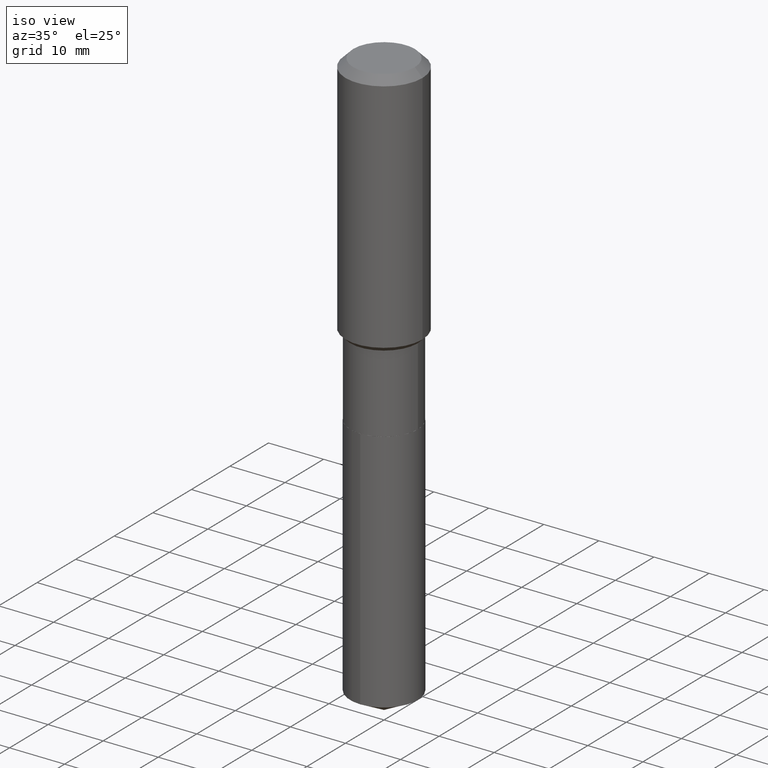
[diagram: clean part render]
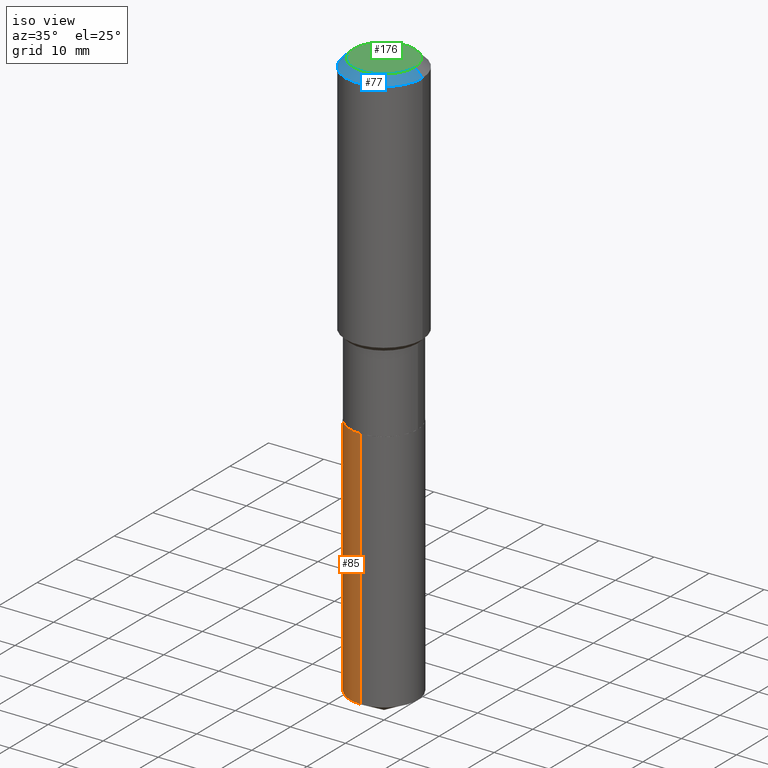
[diagram: same view with three faces highlighted in distinct colors, each labeled with its STEP entity id]
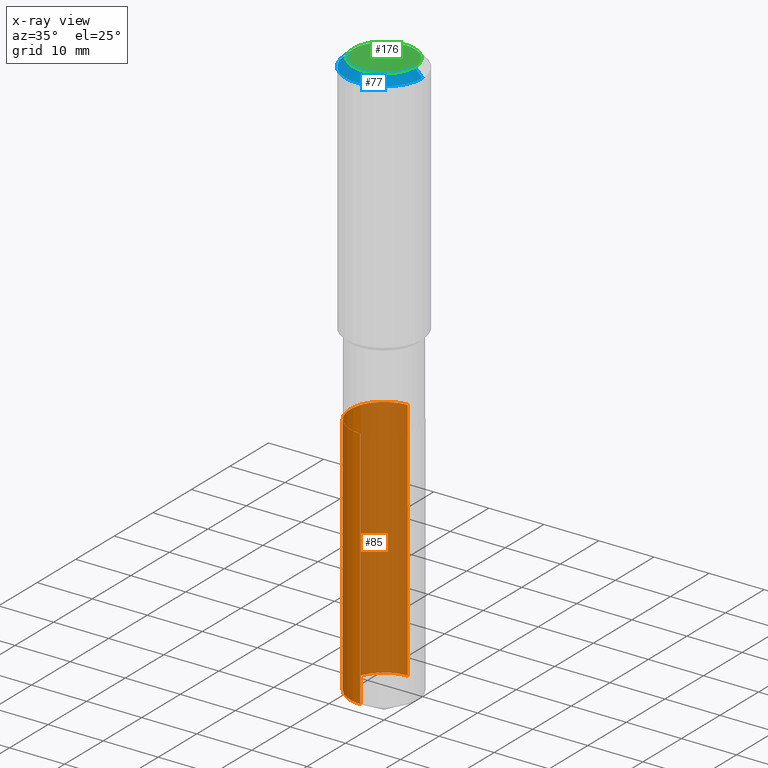
[diagram: x-ray of the same camera — body ghosted, the three highlighted faces saturated]
A machine part, iso view with three faces highlighted in distinct colors.
The next image is the same camera in x-ray (body ghosted, the three faces saturated) — at least one of them is partly hidden behind the body in this view.
Their STEP definitions:

[orange] entity #85 — the highlighted cylindrical surface (partial cylindrical patch) has radius 6.1519 mm, axis along (-0, 0, 1).
#1 = CARTESIAN_POINT ( 'NONE',  ( -1.691273560535556602E-15, -0.2422000000000081865, -2.334799999999999542 ) ) ;
#2 = EDGE_CURVE ( 'NONE', #485, #347, #308, .T. ) ;
#20 = CARTESIAN_POINT ( 'NONE',  ( 5.709680568681056788E-29, -8.151910629930976498E-15, -2.334799999999999986 ) ) ;
#31 = DIRECTION ( 'NONE',  ( -2.445495124633309796E-29, 3.491443649327408440E-15, 1.000000000000000000 ) ) ;
#66 = ORIENTED_EDGE ( 'NONE', *, *, #321, .T. ) ;
#75 = CARTESIAN_POINT ( 'NONE',  ( 9.986900392023290788E-29, -1.425851531646649919E-14, -4.083819975651589829 ) ) ;
#85 = ADVANCED_FACE ( 'NONE', ( #149 ), #103, .T. ) ;
#96 = EDGE_LOOP ( 'NONE', ( #246, #253, #66, #320 ) ) ;
#99 = DIRECTION ( 'NONE',  ( -6.982962677686265922E-15, -1.000000000000000000, 3.383791899666717075E-15 ) ) ;
#103 = CYLINDRICAL_SURFACE ( 'NONE', #340, 0.2422000000000000264 ) ;
#115 = CARTESIAN_POINT ( 'NONE',  ( 1.720934506011062431E-15, 0.2421999999999857323, -4.083819975651591605 ) ) ;
#123 = EDGE_CURVE ( 'NONE', #137, #439, #413, .T. ) ;
#137 = VERTEX_POINT ( 'NONE', #115 ) ;
#149 = FACE_OUTER_BOUND ( 'NONE', #96, .T. ) ;
#154 = CARTESIAN_POINT ( 'NONE',  ( 1.720934506011019438E-15, 0.2421999999999918662, -2.334800000000000875 ) ) ;
#188 = DIRECTION ( 'NONE',  ( -2.445495124633309796E-29, 3.491443649327408440E-15, 1.000000000000000000 ) ) ;
#246 = ORIENTED_EDGE ( 'NONE', *, *, #488, .F. ) ;
#253 = ORIENTED_EDGE ( 'NONE', *, *, #123, .T. ) ;
#261 = DIRECTION ( 'NONE',  ( -6.982962677686265922E-15, -1.000000000000000000, 4.511722532888956363E-15 ) ) ;
#301 = CARTESIAN_POINT ( 'NONE',  ( 1.720934506011062629E-15, 0.2421999999999918940, -2.334800000000000875 ) ) ;
#308 = CIRCLE ( 'NONE', #362, 0.2422000000000000264 ) ;
#320 = ORIENTED_EDGE ( 'NONE', *, *, #2, .F. ) ;
#321 = EDGE_CURVE ( 'NONE', #439, #347, #333, .T. ) ;
#333 = LINE ( 'NONE', #1, #473 ) ;
#336 = CARTESIAN_POINT ( 'NONE',  ( 5.709680568681056788E-29, -8.151910629930976498E-15, -2.334799999999999986 ) ) ;
#340 = AXIS2_PLACEMENT_3D ( 'NONE', #20, #480, #99 ) ;
#344 = DIRECTION ( 'NONE',  ( -2.445495124633309796E-29, 3.491443649327408440E-15, 1.000000000000000000 ) ) ;
#347 = VERTEX_POINT ( 'NONE', #388 ) ;
#353 = LINE ( 'NONE', #154, #465 ) ;
#362 = AXIS2_PLACEMENT_3D ( 'NONE', #336, #344, #382 ) ;
#379 = AXIS2_PLACEMENT_3D ( 'NONE', #75, #31, #261 ) ;
#382 = DIRECTION ( 'NONE',  ( -6.982962677686265922E-15, -1.000000000000000000, 3.383791899666717075E-15 ) ) ;
#384 = CARTESIAN_POINT ( 'NONE',  ( -1.691273560535513806E-15, -0.2422000000000142650, -4.083819975651588940 ) ) ;
#388 = CARTESIAN_POINT ( 'NONE',  ( -1.691273560535556602E-15, -0.2422000000000081865, -2.334799999999999542 ) ) ;
#413 = CIRCLE ( 'NONE', #379, 0.2422000000000000264 ) ;
#439 = VERTEX_POINT ( 'NONE', #384 ) ;
#452 = DIRECTION ( 'NONE',  ( -2.445495124633309796E-29, 3.491443649327408440E-15, 1.000000000000000000 ) ) ;
#465 = VECTOR ( 'NONE', #188, 39.37007874015748143 ) ;
#473 = VECTOR ( 'NONE', #452, 39.37007874015748143 ) ;
#480 = DIRECTION ( 'NONE',  ( -2.445495124633309796E-29, 3.491443649327408440E-15, 1.000000000000000000 ) ) ;
#485 = VERTEX_POINT ( 'NONE', #301 ) ;
#488 = EDGE_CURVE ( 'NONE', #137, #485, #353, .T. ) ;

[blue] entity #77 — the highlighted conical surface has half-angle 45 deg.
#18 = EDGE_CURVE ( 'NONE', #147, #366, #406, .T. ) ;
#28 = DIRECTION ( 'NONE',  ( -1.000000000000000000, 6.982962677686269077E-15, 0.000000000000000000 ) ) ;
#56 = VERTEX_POINT ( 'NONE', #100 ) ;
#61 = CARTESIAN_POINT ( 'NONE',  ( -9.439721640706190018E-47, 1.347742071746724849E-32, 3.860086710912454339E-18 ) ) ;
#63 = AXIS2_PLACEMENT_3D ( 'NONE', #214, #338, #28 ) ;
#68 = FACE_OUTER_BOUND ( 'NONE', #73, .T. ) ;
#73 = EDGE_LOOP ( 'NONE', ( #255, #174, #241, #130 ) ) ;
#77 = ADVANCED_FACE ( 'NONE', ( #68 ), #185, .T. ) ;
#82 = DIRECTION ( 'NONE',  ( 0.7071067811865453523, -7.319954787623248157E-15, -0.7071067811865496822 ) ) ;
#93 = CARTESIAN_POINT ( 'NONE',  ( -0.2756000000000000116, -1.183064895615730633E-15, -0.05512000000000035621 ) ) ;
#100 = CARTESIAN_POINT ( 'NONE',  ( 0.2756000000000000116, -2.116954965367370658E-15, -0.05512000000000035621 ) ) ;
#117 = EDGE_CURVE ( 'NONE', #366, #56, #351, .T. ) ;
#130 = ORIENTED_EDGE ( 'NONE', *, *, #393, .T. ) ;
#141 = EDGE_CURVE ( 'NONE', #147, #222, #343, .T. ) ;
#147 = VERTEX_POINT ( 'NONE', #296 ) ;
#150 = DIRECTION ( 'NONE',  ( -2.445468806185136597E-29, 3.491481338843145583E-15, 1.000000000000000000 ) ) ;
#161 = DIRECTION ( 'NONE',  ( -2.445468806185136597E-29, 3.491481338843145583E-15, 1.000000000000000000 ) ) ;
#174 = ORIENTED_EDGE ( 'NONE', *, *, #18, .F. ) ;
#185 = CONICAL_SURFACE ( 'NONE', #63, 0.2756000000000000116, 0.7853981633974452814 ) ;
#199 = VECTOR ( 'NONE', #221, 39.37007874015748143 ) ;
#214 = CARTESIAN_POINT ( 'NONE',  ( 1.347942405969256063E-30, -1.924504513970354330E-16, -0.05512000000000035621 ) ) ;
#221 = DIRECTION ( 'NONE',  ( -0.7071067811865453523, 2.468850131082234184E-15, -0.7071067811865496822 ) ) ;
#222 = VERTEX_POINT ( 'NONE', #93 ) ;
#226 = CARTESIAN_POINT ( 'NONE',  ( 1.347942405969256063E-30, -1.924504513970354330E-16, -0.05512000000000035621 ) ) ;
#231 = VECTOR ( 'NONE', #82, 39.37007874015748143 ) ;
#241 = ORIENTED_EDGE ( 'NONE', *, *, #141, .T. ) ;
#255 = ORIENTED_EDGE ( 'NONE', *, *, #117, .F. ) ;
#272 = DIRECTION ( 'NONE',  ( 1.000000000000000000, -6.982962677686265922E-15, 0.000000000000000000 ) ) ;
#285 = AXIS2_PLACEMENT_3D ( 'NONE', #61, #150, #373 ) ;
#296 = CARTESIAN_POINT ( 'NONE',  ( -0.2204800000000000093, 1.635828836874783961E-15, 3.860086710901350968E-18 ) ) ;
#338 = DIRECTION ( 'NONE',  ( 2.445468806185136597E-29, -3.491481338843145583E-15, -1.000000000000000000 ) ) ;
#343 = LINE ( 'NONE', #381, #199 ) ;
#351 = LINE ( 'NONE', #453, #231 ) ;
#366 = VERTEX_POINT ( 'NONE', #383 ) ;
#373 = DIRECTION ( 'NONE',  ( 1.000000000000000000, -6.982962677686266711E-15, 4.876132675269083677E-29 ) ) ;
#381 = CARTESIAN_POINT ( 'NONE',  ( -0.2756000000000000116, 1.732054062573300039E-15, -0.05512000000000035621 ) ) ;
#383 = CARTESIAN_POINT ( 'NONE',  ( 0.2204800000000000093, -1.797903149065768707E-15, 3.860086710924123164E-18 ) ) ;
#393 = EDGE_CURVE ( 'NONE', #222, #56, #443, .T. ) ;
#406 = CIRCLE ( 'NONE', #285, 0.2204800000000000093 ) ;
#428 = AXIS2_PLACEMENT_3D ( 'NONE', #226, #161, #272 ) ;
#443 = CIRCLE ( 'NONE', #428, 0.2756000000000000116 ) ;
#453 = CARTESIAN_POINT ( 'NONE',  ( 0.2756000000000000116, -2.083203699582869812E-15, -0.05512000000000035621 ) ) ;

[green] entity #176 — the highlighted planar face has unit normal (0, -0, -1).
#18 = EDGE_CURVE ( 'NONE', #147, #366, #406, .T. ) ;
#26 = AXIS2_PLACEMENT_3D ( 'NONE', #466, #124, #273 ) ;
#44 = DIRECTION ( 'NONE',  ( -2.445468806185136597E-29, 3.491481338843145583E-15, 1.000000000000000000 ) ) ;
#61 = CARTESIAN_POINT ( 'NONE',  ( -9.439721640706190018E-47, 1.347742071746724849E-32, 3.860086710912454339E-18 ) ) ;
#83 = CARTESIAN_POINT ( 'NONE',  ( -9.439721640706190018E-47, 1.347742071746724849E-32, 3.860086710912454339E-18 ) ) ;
#124 = DIRECTION ( 'NONE',  ( 2.438088387897960049E-29, -3.491481338843145188E-15, -1.000000000000000000 ) ) ;
#129 = DIRECTION ( 'NONE',  ( 1.000000000000000000, -6.982962677686266711E-15, 4.876132675269083677E-29 ) ) ;
#142 = EDGE_LOOP ( 'NONE', ( #481, #173 ) ) ;
#147 = VERTEX_POINT ( 'NONE', #296 ) ;
#150 = DIRECTION ( 'NONE',  ( -2.445468806185136597E-29, 3.491481338843145583E-15, 1.000000000000000000 ) ) ;
#162 = AXIS2_PLACEMENT_3D ( 'NONE', #83, #44, #129 ) ;
#173 = ORIENTED_EDGE ( 'NONE', *, *, #259, .T. ) ;
#176 = ADVANCED_FACE ( 'NONE', ( #474 ), #201, .F. ) ;
#201 = PLANE ( 'NONE',  #26 ) ;
#259 = EDGE_CURVE ( 'NONE', #366, #147, #363, .T. ) ;
#273 = DIRECTION ( 'NONE',  ( -1.000000000000000000, 6.982962677686265922E-15, -4.876176775795935793E-29 ) ) ;
#285 = AXIS2_PLACEMENT_3D ( 'NONE', #61, #150, #373 ) ;
#296 = CARTESIAN_POINT ( 'NONE',  ( -0.2204800000000000093, 1.635828836874783961E-15, 3.860086710901350968E-18 ) ) ;
#363 = CIRCLE ( 'NONE', #162, 0.2204800000000000093 ) ;
#366 = VERTEX_POINT ( 'NONE', #383 ) ;
#373 = DIRECTION ( 'NONE',  ( 1.000000000000000000, -6.982962677686266711E-15, 4.876132675269083677E-29 ) ) ;
#383 = CARTESIAN_POINT ( 'NONE',  ( 0.2204800000000000093, -1.797903149065768707E-15, 3.860086710924123164E-18 ) ) ;
#406 = CIRCLE ( 'NONE', #285, 0.2204800000000000093 ) ;
#466 = CARTESIAN_POINT ( 'NONE',  ( -4.719860820353095009E-47, 6.738710358733624243E-33, 1.930043355456227170E-18 ) ) ;
#474 = FACE_OUTER_BOUND ( 'NONE', #142, .T. ) ;
#481 = ORIENTED_EDGE ( 'NONE', *, *, #18, .T. ) ;